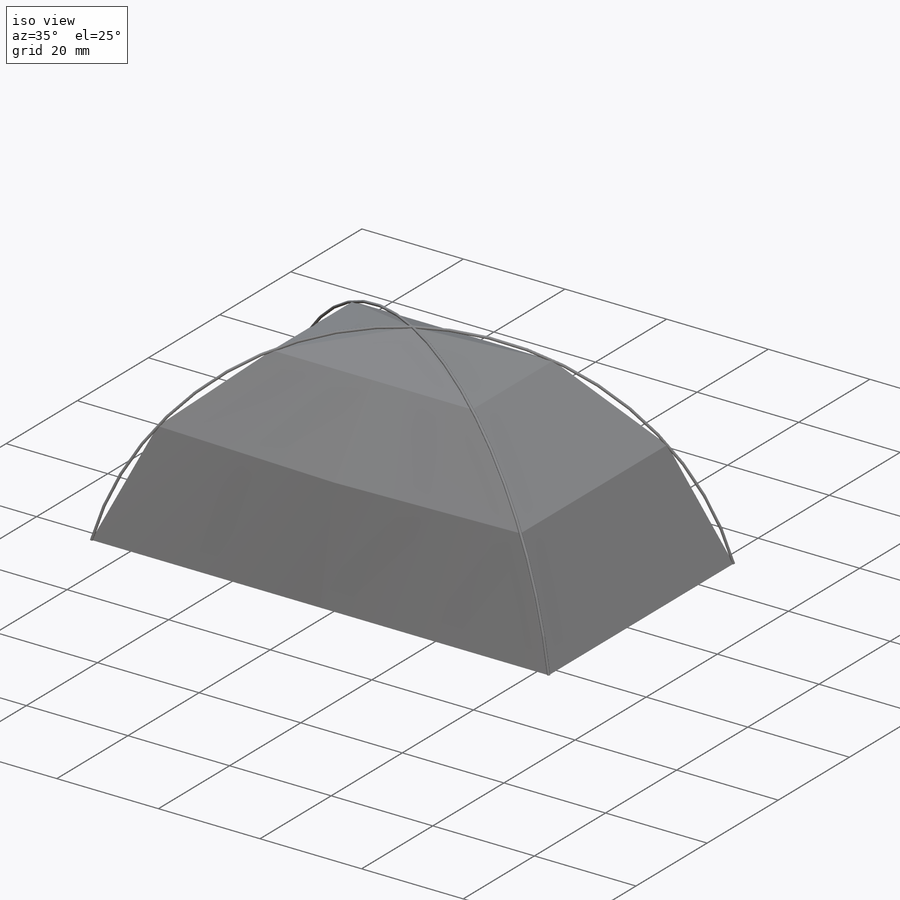
[diagram: iso view]
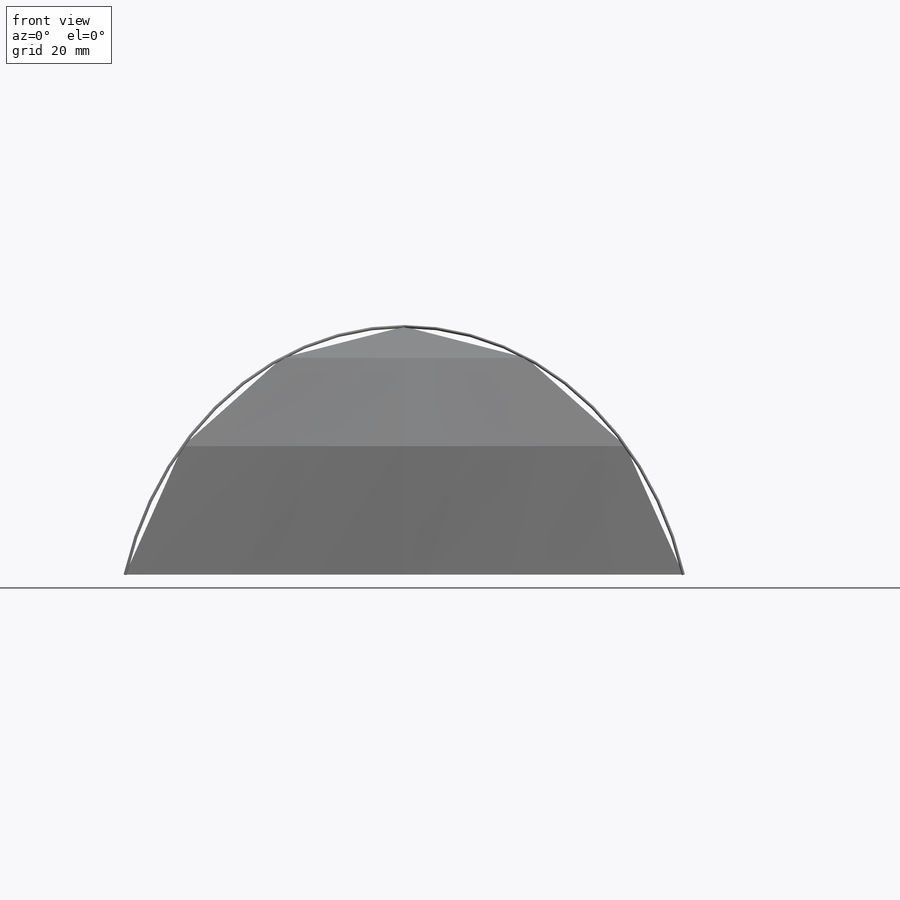
[diagram: front view]
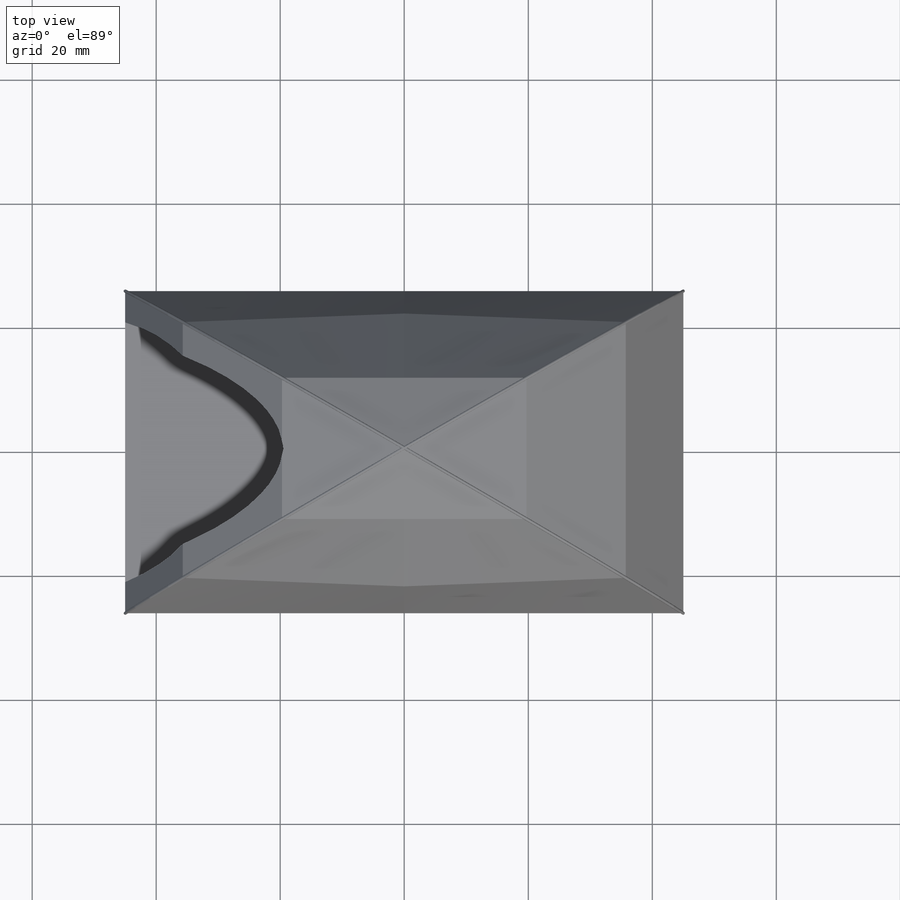
[diagram: top view]
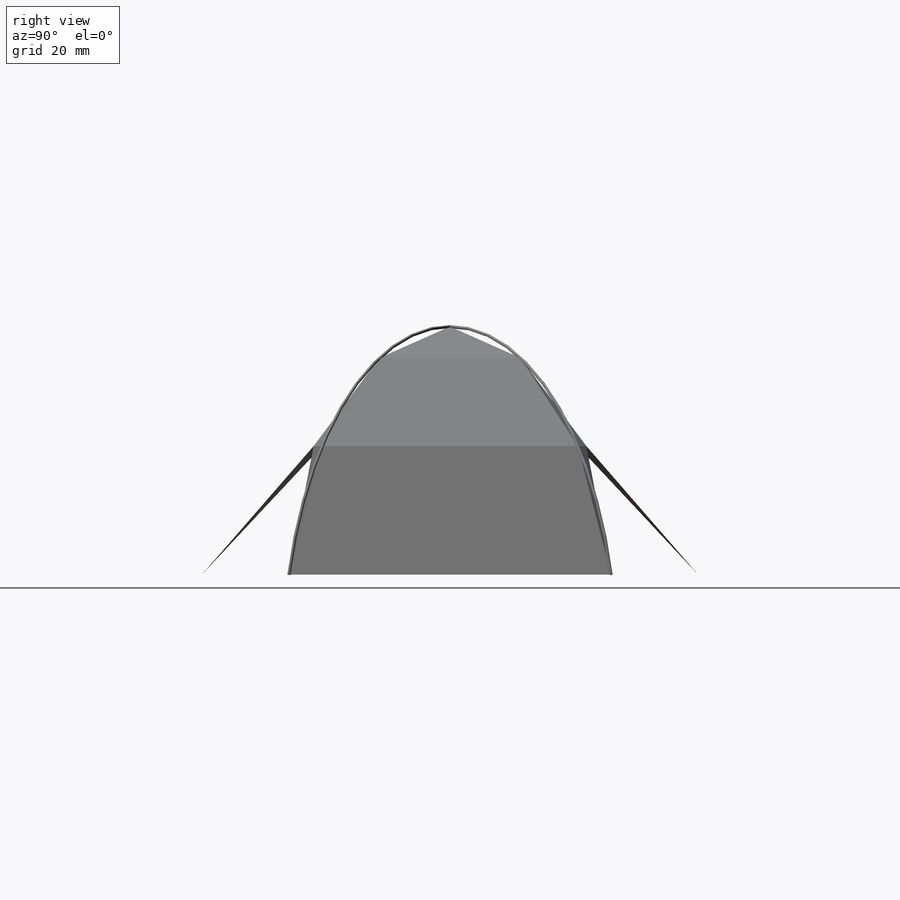
[diagram: right view]
SOLIDWORKS PART (.sldprt)
format: sldprt  version: not decoded by parser v0  size: 408,576 bytes
history: native  units: mm
features: sketch x23, plane x6, mirror x4, sweep x2, material x1 (+12 scaffold rows collapsed)
feature tree (48):
  scaffold x12  (default folders/planes/origin — collapsed)
  material  "Material <not specified>"
  sketch  "Skica1"
  plane  "Rovina1"
  plane  "Rovina2"
  sketch  "Skica3"  dims[D1=90.0mm]
  sketch  "Skica4"  dims[D1=40.0mm]
  sketch  "Skica6"  dims[D1=40.0mm]
  plane  "Rovina3"
  sketch  "Skica7"  dims[D1=22.0mm]
  plane  "Rovina5"
  sketch  "Skica8"  dims[D1=5.0mm]
  plane  "Rovina6"
  sketch  "Skica9"
  sketch  "Skica4<6>"
  sketch  "Skica6<6>"
  sketch  "Skica7<4>"
  sketch  "Skica4<7>"
  sketch  "Skica6<7>"
  sketch  "Skica6<8>"
  sketch  "Skica4<8>"
  sketch  "Skica6<9>"
  sketch  "Skica4<9>"
  sketch  "Skica6<10>"
  sketch  "Skica4<10>"
  mirror  "Zrcadlit1"
  mirror  "Zrcadlit2"
  plane  "Rovina7"
  sketch  "Skica11"  dims[D1=0.5mm]
  sweep  "Táhnout po křivce1"
  sketch  "Skica4<11>"
  mirror  "Zrcadlit3"
  sketch  "Skica14"  dims[D1=40.0mm D2=60.0mm]
  sketch  "Skica14<2>"
  mirror  "Zrcadlit4"
  sketch  "Skica3<6>"
  sweep  "Povrch-Oříznout3"
decode coverage: 7 of 29 modeling features carry decoded parameters
note: suppression state not decoded; provenance and decode notes live in map.json
